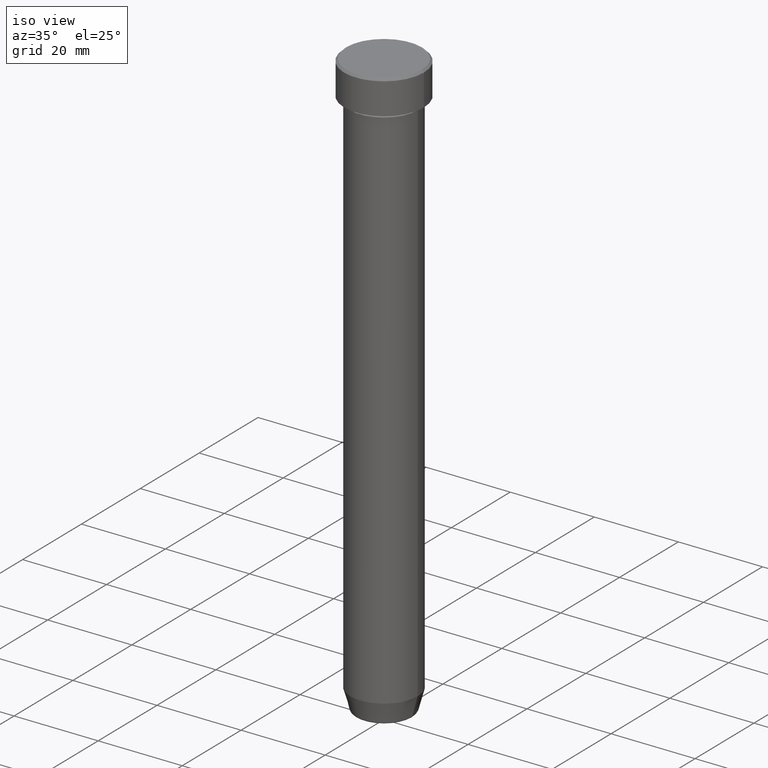
[diagram: clean part render]
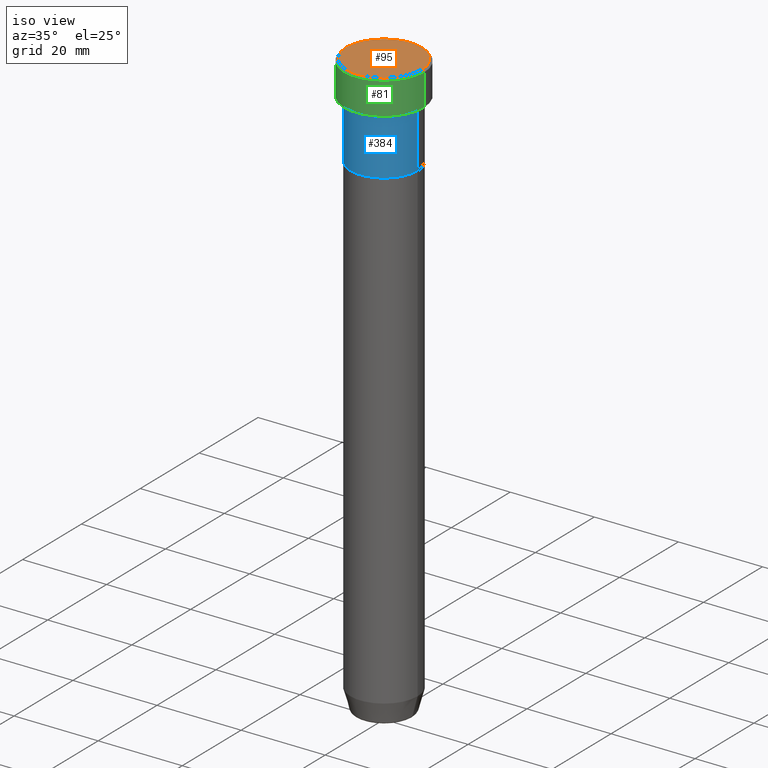
[diagram: same view with three faces highlighted in distinct colors, each labeled with its STEP entity id]
A machine part, iso view with three faces highlighted in distinct colors.
Their STEP definitions:

[orange] entity #95 — the highlighted planar face has unit normal (0, -0, 1).
#8 = CARTESIAN_POINT ( 'NONE',  ( 0.000000000000000000, 0.000000000000000000, 0.000000000000000000 ) ) ;
#23 = EDGE_CURVE ( 'NONE', #401, #386, #563, .T. ) ;
#65 = ORIENTED_EDGE ( 'NONE', *, *, #23, .T. ) ;
#83 = DIRECTION ( 'NONE',  ( -0.000000000000000000, -0.000000000000000000, 1.000000000000000000 ) ) ;
#95 = ADVANCED_FACE ( 'NONE', ( #276 ), #317, .T. ) ;
#102 = DIRECTION ( 'NONE',  ( 1.000000000000000000, 0.000000000000000000, 0.000000000000000000 ) ) ;
#165 = DIRECTION ( 'NONE',  ( -0.000000000000000000, -0.000000000000000000, 1.000000000000000000 ) ) ;
#272 = DIRECTION ( 'NONE',  ( 1.000000000000000000, 0.000000000000000000, 0.000000000000000000 ) ) ;
#276 = FACE_OUTER_BOUND ( 'NONE', #555, .T. ) ;
#310 = CARTESIAN_POINT ( 'NONE',  ( 0.000000000000000000, 0.000000000000000000, 0.000000000000000000 ) ) ;
#317 = PLANE ( 'NONE',  #422 ) ;
#363 = DIRECTION ( 'NONE',  ( 0.000000000000000000, -0.000000000000000000, 1.000000000000000000 ) ) ;
#386 = VERTEX_POINT ( 'NONE', #595 ) ;
#387 = CIRCLE ( 'NONE', #458, 9.000000000000001776 ) ;
#397 = CARTESIAN_POINT ( 'NONE',  ( -9.000000000000001776, 0.000000000000000000, 0.000000000000000000 ) ) ;
#401 = VERTEX_POINT ( 'NONE', #397 ) ;
#422 = AXIS2_PLACEMENT_3D ( 'NONE', #8, #363, #102 ) ;
#446 = DIRECTION ( 'NONE',  ( 1.000000000000000000, 0.000000000000000000, 0.000000000000000000 ) ) ;
#449 = CARTESIAN_POINT ( 'NONE',  ( 0.000000000000000000, 0.000000000000000000, 0.000000000000000000 ) ) ;
#458 = AXIS2_PLACEMENT_3D ( 'NONE', #310, #165, #272 ) ;
#506 = EDGE_CURVE ( 'NONE', #386, #401, #387, .T. ) ;
#517 = ORIENTED_EDGE ( 'NONE', *, *, #506, .T. ) ;
#534 = AXIS2_PLACEMENT_3D ( 'NONE', #449, #83, #446 ) ;
#555 = EDGE_LOOP ( 'NONE', ( #65, #517 ) ) ;
#563 = CIRCLE ( 'NONE', #534, 9.000000000000001776 ) ;
#595 = CARTESIAN_POINT ( 'NONE',  ( 9.000000000000001776, 1.132798289211301698E-15, 0.000000000000000000 ) ) ;

[blue] entity #384 — the highlighted cylindrical surface (partial cylindrical patch) has radius 8 mm, axis along (-0, -0, 1).
#21 = ORIENTED_EDGE ( 'NONE', *, *, #390, .F. ) ;
#27 = CYLINDRICAL_SURFACE ( 'NONE', #32, 8.000000000000000000 ) ;
#31 = LINE ( 'NONE', #128, #307 ) ;
#32 = AXIS2_PLACEMENT_3D ( 'NONE', #126, #266, #589 ) ;
#58 = VERTEX_POINT ( 'NONE', #475 ) ;
#98 = VERTEX_POINT ( 'NONE', #464 ) ;
#126 = CARTESIAN_POINT ( 'NONE',  ( 0.000000000000000000, 0.000000000000000000, 0.000000000000000000 ) ) ;
#128 = CARTESIAN_POINT ( 'NONE',  ( -8.000000000000000000, 9.797174393178825657E-16, 0.000000000000000000 ) ) ;
#132 = EDGE_LOOP ( 'NONE', ( #204, #465, #414, #21 ) ) ;
#150 = DIRECTION ( 'NONE',  ( -0.000000000000000000, -0.000000000000000000, 1.000000000000000000 ) ) ;
#164 = EDGE_CURVE ( 'NONE', #193, #442, #463, .T. ) ;
#171 = CARTESIAN_POINT ( 'NONE',  ( 8.000000000000000000, 0.000000000000000000, -22.00000000000000000 ) ) ;
#182 = CARTESIAN_POINT ( 'NONE',  ( -8.000000000000000000, 9.797174393178825657E-16, -22.00000000000000000 ) ) ;
#193 = VERTEX_POINT ( 'NONE', #182 ) ;
#204 = ORIENTED_EDGE ( 'NONE', *, *, #461, .F. ) ;
#235 = AXIS2_PLACEMENT_3D ( 'NONE', #312, #304, #441 ) ;
#266 = DIRECTION ( 'NONE',  ( -0.000000000000000000, -0.000000000000000000, 1.000000000000000000 ) ) ;
#304 = DIRECTION ( 'NONE',  ( -0.000000000000000000, -0.000000000000000000, 1.000000000000000000 ) ) ;
#307 = VECTOR ( 'NONE', #356, 1000.000000000000000 ) ;
#312 = CARTESIAN_POINT ( 'NONE',  ( 0.000000000000000000, 0.000000000000000000, -9.000000000000001776 ) ) ;
#320 = DIRECTION ( 'NONE',  ( 1.000000000000000000, 0.000000000000000000, 0.000000000000000000 ) ) ;
#345 = FACE_OUTER_BOUND ( 'NONE', #132, .T. ) ;
#354 = AXIS2_PLACEMENT_3D ( 'NONE', #366, #150, #320 ) ;
#356 = DIRECTION ( 'NONE',  ( -0.000000000000000000, -0.000000000000000000, 1.000000000000000000 ) ) ;
#366 = CARTESIAN_POINT ( 'NONE',  ( 0.000000000000000000, 0.000000000000000000, -22.00000000000000000 ) ) ;
#384 = ADVANCED_FACE ( 'NONE', ( #345 ), #27, .T. ) ;
#390 = EDGE_CURVE ( 'NONE', #98, #58, #485, .T. ) ;
#392 = CARTESIAN_POINT ( 'NONE',  ( 8.000000000000000000, 0.000000000000000000, 0.000000000000000000 ) ) ;
#400 = DIRECTION ( 'NONE',  ( -0.000000000000000000, -0.000000000000000000, 1.000000000000000000 ) ) ;
#414 = ORIENTED_EDGE ( 'NONE', *, *, #444, .T. ) ;
#441 = DIRECTION ( 'NONE',  ( 1.000000000000000000, 0.000000000000000000, 0.000000000000000000 ) ) ;
#442 = VERTEX_POINT ( 'NONE', #171 ) ;
#444 = EDGE_CURVE ( 'NONE', #442, #58, #483, .T. ) ;
#461 = EDGE_CURVE ( 'NONE', #193, #98, #31, .T. ) ;
#463 = CIRCLE ( 'NONE', #354, 8.000000000000000000 ) ;
#464 = CARTESIAN_POINT ( 'NONE',  ( -8.000000000000000000, 9.797174393178825657E-16, -9.000000000000001776 ) ) ;
#465 = ORIENTED_EDGE ( 'NONE', *, *, #164, .T. ) ;
#475 = CARTESIAN_POINT ( 'NONE',  ( 8.000000000000000000, 0.000000000000000000, -9.000000000000001776 ) ) ;
#483 = LINE ( 'NONE', #392, #585 ) ;
#485 = CIRCLE ( 'NONE', #235, 8.000000000000000000 ) ;
#585 = VECTOR ( 'NONE', #400, 1000.000000000000000 ) ;
#589 = DIRECTION ( 'NONE',  ( 1.000000000000000000, 0.000000000000000000, 0.000000000000000000 ) ) ;

[green] entity #81 — the highlighted cylindrical surface (partial cylindrical patch) has radius 9.5 mm, axis along (-0, -0, 1).
#17 = AXIS2_PLACEMENT_3D ( 'NONE', #388, #530, #300 ) ;
#26 = FACE_OUTER_BOUND ( 'NONE', #371, .T. ) ;
#43 = LINE ( 'NONE', #273, #380 ) ;
#52 = ORIENTED_EDGE ( 'NONE', *, *, #232, .T. ) ;
#57 = EDGE_CURVE ( 'NONE', #152, #295, #43, .T. ) ;
#81 = ADVANCED_FACE ( 'NONE', ( #26 ), #210, .T. ) ;
#94 = CARTESIAN_POINT ( 'NONE',  ( 9.500000000000000000, 0.000000000000000000, 0.000000000000000000 ) ) ;
#105 = DIRECTION ( 'NONE',  ( 1.000000000000000000, 0.000000000000000000, 0.000000000000000000 ) ) ;
#119 = EDGE_CURVE ( 'NONE', #152, #202, #543, .T. ) ;
#136 = AXIS2_PLACEMENT_3D ( 'NONE', #406, #326, #510 ) ;
#151 = VECTOR ( 'NONE', #502, 1000.000000000000000 ) ;
#152 = VERTEX_POINT ( 'NONE', #241 ) ;
#186 = EDGE_CURVE ( 'NONE', #202, #424, #323, .T. ) ;
#202 = VERTEX_POINT ( 'NONE', #419 ) ;
#210 = CYLINDRICAL_SURFACE ( 'NONE', #17, 9.500000000000000000 ) ;
#223 = CARTESIAN_POINT ( 'NONE',  ( 9.500000000000000000, 0.000000000000000000, -0.4999999999999968914 ) ) ;
#232 = EDGE_CURVE ( 'NONE', #424, #295, #508, .T. ) ;
#241 = CARTESIAN_POINT ( 'NONE',  ( -9.500000000000000000, 1.163414459189985485E-15, -8.000000000000000000 ) ) ;
#260 = ORIENTED_EDGE ( 'NONE', *, *, #186, .T. ) ;
#273 = CARTESIAN_POINT ( 'NONE',  ( -9.500000000000000000, 1.163414459189985485E-15, 0.000000000000000000 ) ) ;
#280 = ORIENTED_EDGE ( 'NONE', *, *, #57, .F. ) ;
#283 = DIRECTION ( 'NONE',  ( -0.000000000000000000, -0.000000000000000000, 1.000000000000000000 ) ) ;
#295 = VERTEX_POINT ( 'NONE', #389 ) ;
#300 = DIRECTION ( 'NONE',  ( 1.000000000000000000, 0.000000000000000000, 0.000000000000000000 ) ) ;
#323 = LINE ( 'NONE', #94, #151 ) ;
#326 = DIRECTION ( 'NONE',  ( 0.000000000000000000, 0.000000000000000000, -1.000000000000000000 ) ) ;
#346 = ORIENTED_EDGE ( 'NONE', *, *, #119, .T. ) ;
#362 = DIRECTION ( 'NONE',  ( -0.000000000000000000, -0.000000000000000000, 1.000000000000000000 ) ) ;
#371 = EDGE_LOOP ( 'NONE', ( #280, #346, #260, #52 ) ) ;
#380 = VECTOR ( 'NONE', #362, 1000.000000000000000 ) ;
#388 = CARTESIAN_POINT ( 'NONE',  ( 0.000000000000000000, 0.000000000000000000, 0.000000000000000000 ) ) ;
#389 = CARTESIAN_POINT ( 'NONE',  ( -9.500000000000000000, 1.163414459189985485E-15, -0.4999999999999968914 ) ) ;
#406 = CARTESIAN_POINT ( 'NONE',  ( 0.000000000000000000, 0.000000000000000000, -0.4999999999999968914 ) ) ;
#419 = CARTESIAN_POINT ( 'NONE',  ( 9.500000000000000000, 0.000000000000000000, -8.000000000000000000 ) ) ;
#424 = VERTEX_POINT ( 'NONE', #223 ) ;
#502 = DIRECTION ( 'NONE',  ( -0.000000000000000000, -0.000000000000000000, 1.000000000000000000 ) ) ;
#508 = CIRCLE ( 'NONE', #136, 9.500000000000000000 ) ;
#510 = DIRECTION ( 'NONE',  ( 1.000000000000000000, 0.000000000000000000, 0.000000000000000000 ) ) ;
#530 = DIRECTION ( 'NONE',  ( -0.000000000000000000, -0.000000000000000000, 1.000000000000000000 ) ) ;
#543 = CIRCLE ( 'NONE', #550, 9.500000000000000000 ) ;
#547 = CARTESIAN_POINT ( 'NONE',  ( 0.000000000000000000, 0.000000000000000000, -8.000000000000000000 ) ) ;
#550 = AXIS2_PLACEMENT_3D ( 'NONE', #547, #283, #105 ) ;